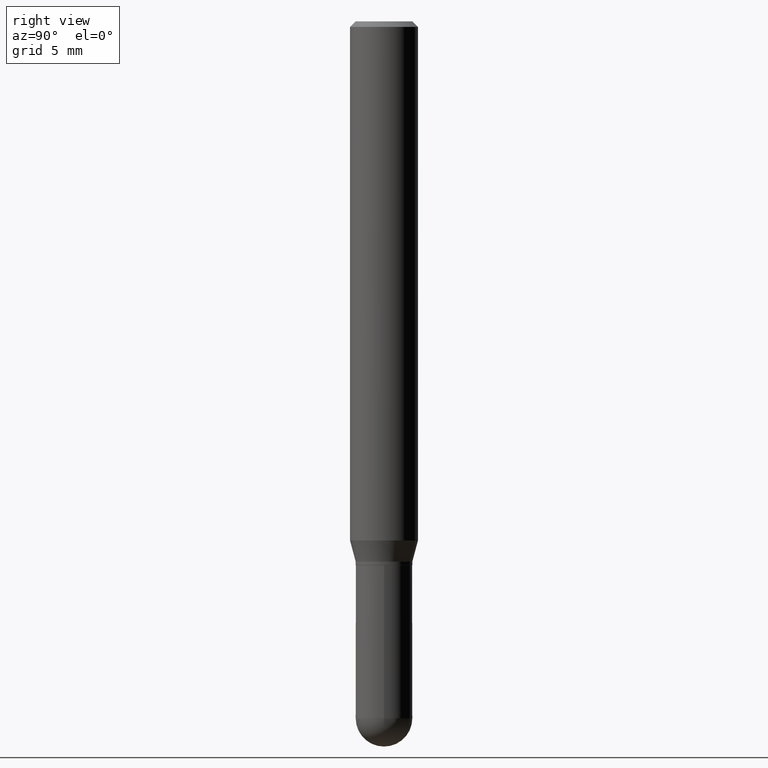
[diagram: clean part render]
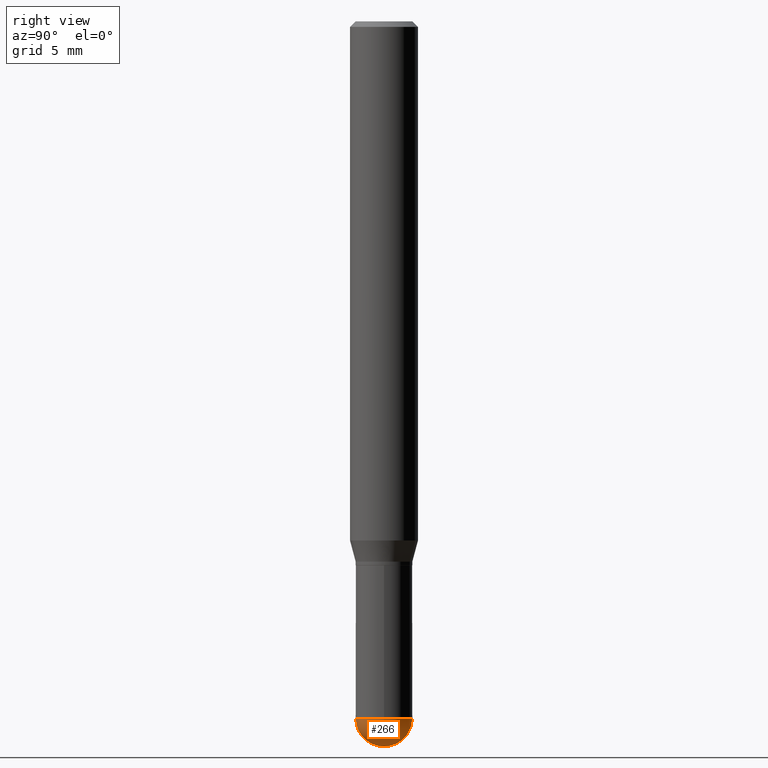
[diagram: same view with one face highlighted and labeled with its STEP entity id]
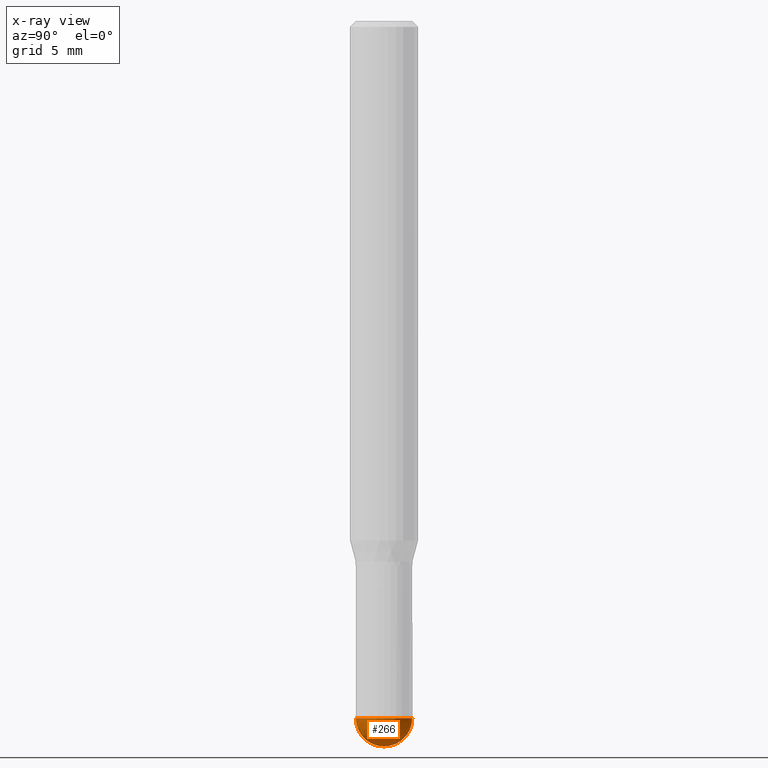
[diagram: x-ray of the same camera — body ghosted, the highlighted face saturated]
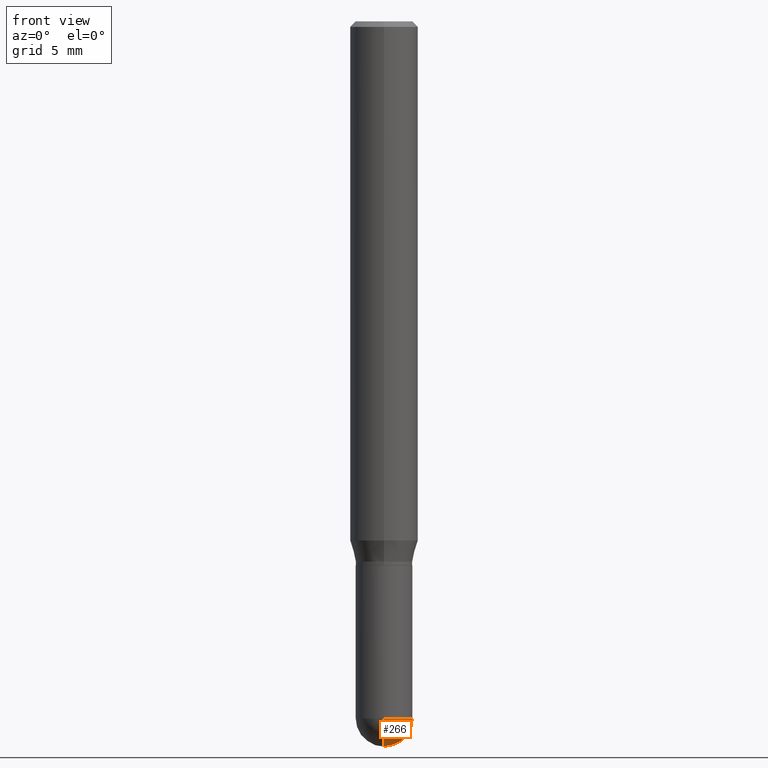
[diagram: same view with one face highlighted and labeled with its STEP entity id]
A machine part, right view. The second image highlights one B-rep face of the part: STEP entity #266.
The next image is the same camera in x-ray: the body ghosted, the highlighted face saturated — about 0% of this face is hidden behind the body in this view.
A second angle (front view) of the same face is appended — the face is thin or edge-on in the first view.
In plain terms, the highlighted spherical surface has radius 1.9837 mm.
Its self-contained STEP definition (entity closure, byte-faithful):
#11 = EDGE_LOOP ( 'NONE', ( #327, #487, #189, #274 ) ) ;
#68 = VERTEX_POINT ( 'NONE', #305 ) ;
#91 = SPHERICAL_SURFACE ( 'NONE', #451, 0.07809999999999996112 ) ;
#113 = EDGE_CURVE ( 'NONE', #68, #472, #184, .T. ) ;
#123 = CARTESIAN_POINT ( 'NONE',  ( 4.693267649888723399E-29, -6.719842476623982487E-15, -1.921900000000000164 ) ) ;
#137 = VERTEX_POINT ( 'NONE', #202 ) ;
#159 = EDGE_CURVE ( 'NONE', #271, #137, #243, .T. ) ;
#184 = CIRCLE ( 'NONE', #501, 0.07810000000000000275 ) ;
#189 = ORIENTED_EDGE ( 'NONE', *, *, #337, .F. ) ;
#195 = CARTESIAN_POINT ( 'NONE',  ( 4.699946498607214373E-29, -6.710277985122641264E-15, -1.921900000000000164 ) ) ;
#198 = DIRECTION ( 'NONE',  ( -1.000000000000000000, 7.105427357601001070E-15, -4.926315508542082329E-29 ) ) ;
#202 = CARTESIAN_POINT ( 'NONE',  ( 5.453693851273441764E-16, 0.07809999999999325815, -1.921900000000000386 ) ) ;
#203 = CARTESIAN_POINT ( 'NONE',  ( 4.699946498607214373E-29, -6.710277985122641264E-15, -1.921900000000000164 ) ) ;
#236 = DIRECTION ( 'NONE',  ( -2.445468806185136597E-29, 3.491481338843145583E-15, 1.000000000000000000 ) ) ;
#243 = CIRCLE ( 'NONE', #428, 0.07809999999999996112 ) ;
#246 = DIRECTION ( 'NONE',  ( 1.000000000000000000, -6.982962677686266711E-15, 0.000000000000000000 ) ) ;
#247 = DIRECTION ( 'NONE',  ( 1.000000000000000000, -6.982962677686265922E-15, 4.883557194083112340E-29 ) ) ;
#257 = CARTESIAN_POINT ( 'NONE',  ( 4.693267649888723399E-29, -6.719842476623982487E-15, -1.921900000000000164 ) ) ;
#266 = ADVANCED_FACE ( 'NONE', ( #326 ), #91, .T. ) ;
#271 = VERTEX_POINT ( 'NONE', #291 ) ;
#274 = ORIENTED_EDGE ( 'NONE', *, *, #113, .F. ) ;
#277 = CARTESIAN_POINT ( 'NONE',  ( 0.07810000000000000275, -6.519119381820976762E-15, -1.921900000000000164 ) ) ;
#287 = CIRCLE ( 'NONE', #385, 0.07809999999999996112 ) ;
#291 = CARTESIAN_POINT ( 'NONE',  ( 4.887598188011028267E-29, -6.987744923436962171E-15, -2.000000000000000000 ) ) ;
#305 = CARTESIAN_POINT ( 'NONE',  ( -5.549338766285910317E-16, -0.07810000000000670572, -1.921899999999999720 ) ) ;
#326 = FACE_OUTER_BOUND ( 'NONE', #11, .T. ) ;
#327 = ORIENTED_EDGE ( 'NONE', *, *, #394, .F. ) ;
#337 = EDGE_CURVE ( 'NONE', #472, #137, #356, .T. ) ;
#356 = CIRCLE ( 'NONE', #484, 0.07810000000000000275 ) ;
#369 = DIRECTION ( 'NONE',  ( -1.000000000000000000, 6.982962677686265922E-15, -4.883557194083112901E-29 ) ) ;
#382 = DIRECTION ( 'NONE',  ( -7.105427357601000281E-15, -1.000000000000000000, 0.000000000000000000 ) ) ;
#385 = AXIS2_PLACEMENT_3D ( 'NONE', #408, #198, #382 ) ;
#394 = EDGE_CURVE ( 'NONE', #271, #68, #287, .T. ) ;
#405 = DIRECTION ( 'NONE',  ( -2.445468806185136597E-29, 3.491481338843145583E-15, 1.000000000000000000 ) ) ;
#408 = CARTESIAN_POINT ( 'NONE',  ( 4.693267649888723399E-29, -6.719842476623982487E-15, -1.921900000000000164 ) ) ;
#428 = AXIS2_PLACEMENT_3D ( 'NONE', #123, #247, #511 ) ;
#439 = DIRECTION ( 'NONE',  ( 1.000000000000000000, -6.982962677686266711E-15, 0.000000000000000000 ) ) ;
#451 = AXIS2_PLACEMENT_3D ( 'NONE', #257, #369, #490 ) ;
#472 = VERTEX_POINT ( 'NONE', #277 ) ;
#484 = AXIS2_PLACEMENT_3D ( 'NONE', #203, #405, #246 ) ;
#487 = ORIENTED_EDGE ( 'NONE', *, *, #159, .T. ) ;
#490 = DIRECTION ( 'NONE',  ( 6.982962677686265922E-15, 1.000000000000000000, -3.497884755011862382E-15 ) ) ;
#501 = AXIS2_PLACEMENT_3D ( 'NONE', #195, #236, #439 ) ;
#511 = DIRECTION ( 'NONE',  ( 6.982962677686266711E-15, 1.000000000000000000, 0.000000000000000000 ) ) ;